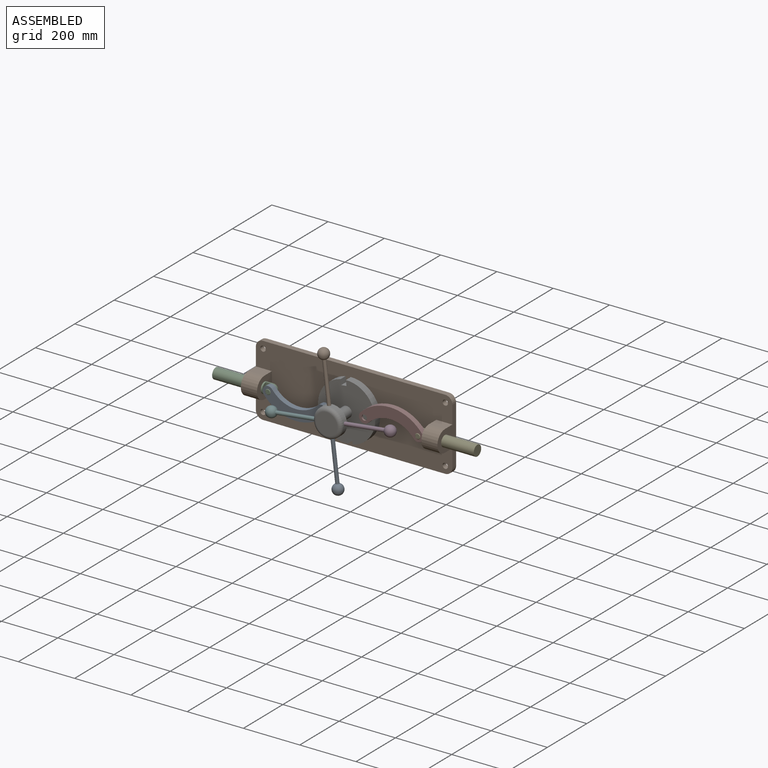
[diagram: assembled view]
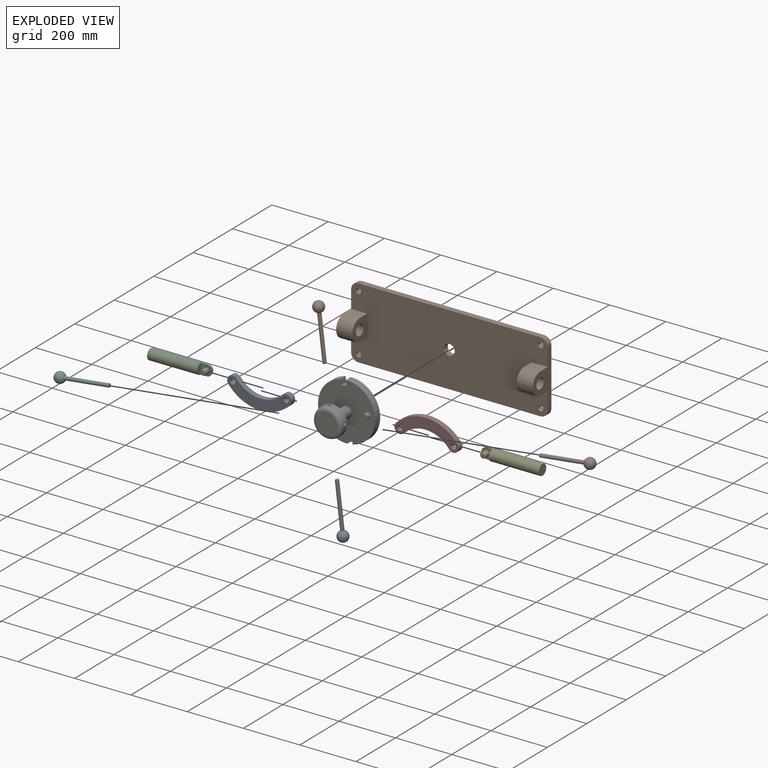
[diagram: exploded view]
GUIDED TOUR — MATED ASSEMBLY (Onshape document 58ec219f7053360f6da403fd, AutoMate assembly 58ec219f7053360f6da403fd_90d30a68a05c3bae7138fc90_4ec4306eb10f4b63859c2d42_default)

This assembly has 10 components, labeled P0..P9 below (a component is one placed occurrence of a part; the same part can appear more than once), held together by 11 mates. A mate is a constraint between two components; its type names the relative motion it leaves free:
  CYLINDRICAL — leaves both rotation about and translation along the listed axis free,
  FASTENED — locks the two components together rigidly (no relative motion),
  REVOLUTE — leaves rotation about the listed axis free (a hinge).
Axis/direction vectors are unit vectors and 'through' points are millimeter coordinates, both in the assembly's world frame.

MATES
  1. FASTENED "Fastened 4": P3 <-> P6, direction (-0.993, 0.000, -0.120) through (312.46, 189.18, 164.73) mm
  2. FASTENED "Fastened 5": P1 <-> P6, direction (0.120, 0.000, -0.993) through (273.74, 189.18, 195.10) mm
  3. FASTENED "Fastened 1": P5 <-> P6, direction (0.993, 0.000, 0.120) through (243.37, 189.18, 156.38) mm
  4. REVOLUTE "Revolute 3": P6 <-> P9, axis (0.000, 1.000, 0.000) through (277.92, 339.04, 160.55) mm
  5. REVOLUTE "Revolute 4": P0 <-> P6, axis (0.000, 1.000, 0.000) through (202.27, 269.19, 151.41) mm
  6. FASTENED "Fastened 3": P8 <-> P6, direction (-0.120, 0.000, 0.993) through (282.09, 189.18, 126.01) mm
  7. CYLINDRICAL "Cylindrical 2": P9 <-> P2, axis (1.000, 0.000, 0.000) through (-71.33, 269.19, 160.55) mm
  8. REVOLUTE "Revolute 1": P7 <-> P4, axis (0.000, 1.000, 0.000) through (544.22, 269.19, 160.55) mm
  9. REVOLUTE "Revolute 2": P0 <-> P2, axis (0.000, 1.000, 0.000) through (11.99, 269.19, 160.55) mm
  10. REVOLUTE "Revolute 5": P7 <-> P6, axis (0.000, 1.000, 0.000) through (353.94, 269.19, 169.74) mm
  11. CYLINDRICAL "Cylindrical 1": P4 <-> P9, axis (1.000, 0.000, 0.000) through (742.85, 269.19, 160.55) mm

ASSEMBLY ORDER
  1. P6 — the base component [order verified]
  2. P0 [order verified]
  3. P7 [order verified]
  4. P9 [order verified]
  5. P2 [order verified]
  6. P4 [order verified]
  7. P3 [order verified]
  8. P5 [order verified]
  9. P1 [order verified]
  10. P8 [order verified]
(P0, P2, P4 verified with a relaxed clearance tolerance: the source model stores slight part interference there.)
Order-tag legend:
  [order verified] — this step's position reverses a verified removal order: the component was checked to insert without passing through the ones already placed.

Of the 10 components, 2 carry the full construction recipe — the FeatureScript program that regenerates the part's solid from scratch; the rest are supplied as boundary geometry only.
Each toured component is shown spotlighted twice — in the assembled view, then in the exploded view, where a leader line traces a displaced component back to its assembled socket (saturated green if recipe-attached, orange if geometry-only; every other component desaturated gray) — followed by its recipe or geometry summary and the mates that hold it.
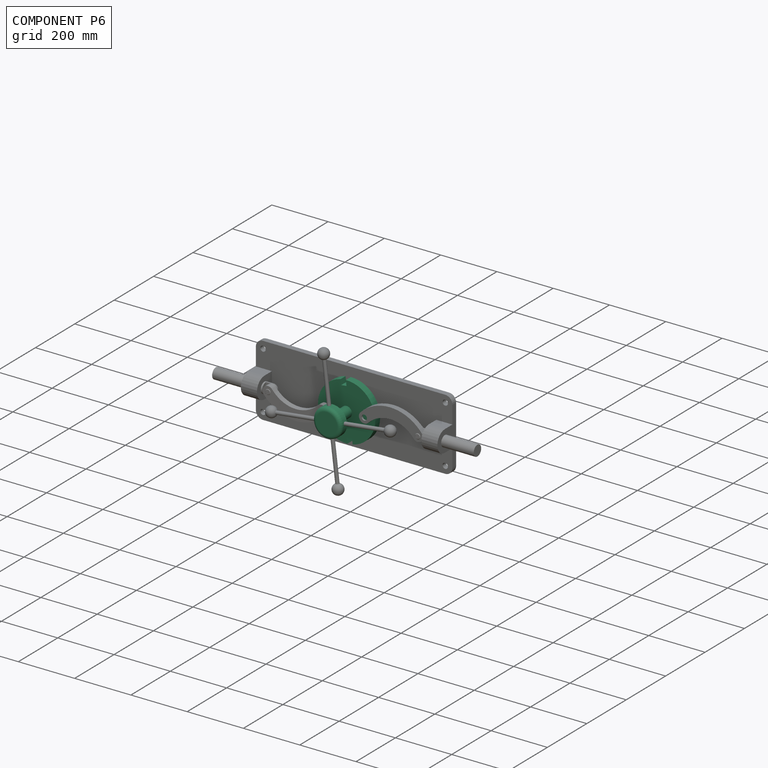
[diagram: component P6 — assembled]
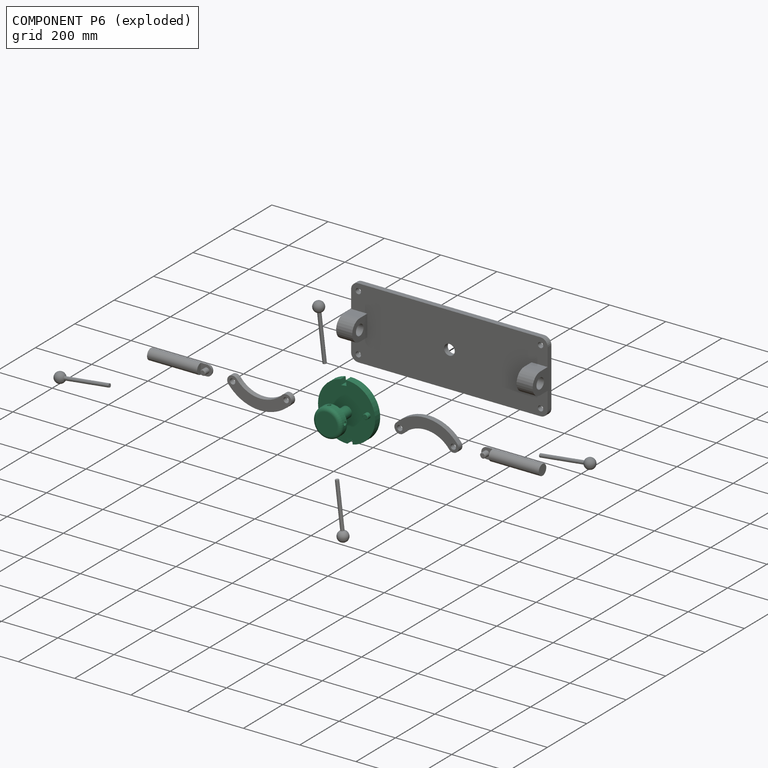
[diagram: component P6 — exploded]
COMPONENT P6 — recipe-attached (CADFS 00471395, mesh-verified: the recipe's output STEP matches this component's geometry to below the mesh-comparison resolution (tessellation chordal tolerance ~0.501 mm)).
Held by: FASTENED mate "Fastened 4" to P3; FASTENED mate "Fastened 5" to P1; FASTENED mate "Fastened 1" to P5; REVOLUTE mate "Revolute 3" to P9; REVOLUTE mate "Revolute 4" to P0; FASTENED mate "Fastened 3" to P8; REVOLUTE mate "Revolute 5" to P7.
Construction recipe (FeatureScript — the CAD program that rebuilds this solid; sketch coordinates are in the units given by the * unit suffixes, e.g. mm):

FeatureScript 2345;
import(path : "onshape/std/geometry.fs", version : "2345.0");
import(path : "onshape/std/common.fs", version : "2345.0");
const mm = millimeter;
const VERTEX = EntityType.VERTEX;
const EDGE = EntityType.EDGE;
const FACE = EntityType.FACE;
const BODY = EntityType.BODY;
function v(x, y){return vector(x, y);}
function OD(order){return orderDisambiguation(order);}
function OSD(set){return originalSetDisambiguation(set);}
function TD(topology){return topologyDisambiguation(topology);}
function TDD(query){return trueDependencyDisambiguation(query);}
function sQuery(a, b, c) {return sketchEntityQuery(a, b, c);}

annotation { "Feature Type Name" : "Feature", "Feature Type Description" : "" }
export const myFeature = defineFeature(function(context is Context, id is Id, definition is map)
    precondition{}
    {
        {
            var Q0;
            Q0=qCreatedBy(makeId("Front.planeOp"),FACE);
            var sketch = newSketch(context, id + "F0", { "sketchPlane" : qUnion([Q0])});
            skCircle(sketch, "E0", {"center": v(0, 0) * mm, "radius": 101.6 * mm});
            skSolve(sketch);
        }
        {
            var Q0;
            Q0 = qSketchRegion(id + "F0", true);
            extrude(context, id + "F1", {"entities" : qUnion([Q0]), "depth" : 19.05 * mm});
        }
        {
            var Q0;
            Q0=makeQuery(id+"F1.opExtrude","CAP_FACE",FACE,{"disambiguationData":[OSD([sQuery(id+"F0.wireOp",EDGE,"E0")])],"isStart":false});
            var sketch = newSketch(context, id + "F2", { "sketchPlane" : qUnion([Q0])});
            skCircle(sketch, "E1", {"center": v(0, 0) * mm, "radius": 19.05 * mm});
            skSolve(sketch);
        }
        {
            var Q0;
            Q0 = qSketchRegion(id + "F2", true);
            var Q1;
            Q1=makeQuery(id+"F2.imprint","IMPRINT",FACE,{"disambiguationData":[TD([[makeQuery(id+"F2.imprint","IMPRINT",EDGE,{"derivedFrom":sQuery(id+"F2.wireOp",EDGE,"E1")}),1.0]])]});
            extrude(context, id + "F3", {"entities" : qUnion([Q0, Q1]), "operationType" : NewBodyOperationType.ADD, "depth" : 76.2 * mm});
        }
        {
            var Q0;
            Q0=makeQuery(id+"F3.opExtrude","CAP_FACE",FACE,{"disambiguationData":[OSD([sQuery(id+"F2.wireOp",EDGE,"E1")])],"isStart":false});
            var sketch = newSketch(context, id + "F4", { "sketchPlane" : qUnion([Q0])});
            skCircle(sketch, "E2", {"center": v(0, 0) * mm, "radius": 50.8 * mm});
            skSolve(sketch);
        }
        {
            var Q0;
            Q0=makeQuery(id+"F4.imprint","IMPRINT",FACE,{"disambiguationData":[TD([[makeQuery(id+"F4.imprint","IMPRINT",EDGE,{"derivedFrom":sQuery(id+"F4.wireOp",EDGE,"E2")}),1.0]])]});
            var Q1;
            Q1=makeQuery(id+"F4.imprint","IMPRINT",FACE,{"disambiguationData":[TD([[makeQuery(id+"F4.imprint","IMPRINT",EDGE,{"derivedFrom":makeQuery(id+"F3.opExtrude","CAP_EDGE",EDGE,{"disambiguationData":[OSD([sQuery(id+"F2.wireOp",EDGE,"E1")])],"isStart":false})}),1.0]])]});
            extrude(context, id + "F5", {"entities" : qUnion([Q0, Q1]), "operationType" : NewBodyOperationType.ADD, "depth" : 31.75 * mm});
        }
        {
            var Q0;
            Q0=makeQuery(id+"F1.opExtrude","CAP_FACE",FACE,{"disambiguationData":[OSD([sQuery(id+"F0.wireOp",EDGE,"E0")])],"isStart":false});
            var sketch = newSketch(context, id + "F6", { "sketchPlane" : qUnion([Q0])});
            skCircle(sketch, "E3", {"center": v(0, 76.2) * mm, "radius": 9.53 * mm});
            skCircle(sketch, "E4", {"center": v(0, -76.58) * mm, "radius": 9.52 * mm});
            skSolve(sketch);
        }
        {
            var Q0;
            Q0 = qSketchRegion(id + "F6", true);
            extrude(context, id + "F7", {"entities" : qUnion([Q0]), "operationType" : NewBodyOperationType.ADD, "depth" : 20.83 * mm});
        }
        {
            var Q0;
            Q0=makeQuery(id+"F5.opExtrude","CAP_EDGE",EDGE,{"disambiguationData":[OSD([sQuery(id+"F4.wireOp",EDGE,"E2")])],"isStart":false});
            fillet(context, id + "F8", {"entities" : qUnion([Q0]), "radius" : 12.7 * mm, "tangentPropagation" : true, "allowEdgeOverflow" : false});
        }
        {
            var Q0;
            Q0=makeQuery(id+"F1.opExtrude","CAP_FACE",FACE,{"disambiguationData":[OSD([sQuery(id+"F0.wireOp",EDGE,"E0")])],"isStart":true});
            var sketch = newSketch(context, id + "F9", { "sketchPlane" : qUnion([Q0])});
            skCircle(sketch, "E5", {"center": v(0, 0) * mm, "radius": 25.4 * mm});
            skSolve(sketch);
        }
        {
            var Q0;
            Q0 = qSketchRegion(id + "F9", true);
            extrude(context, id + "F10", {"entities" : qUnion([Q0]), "operationType" : NewBodyOperationType.ADD, "depth" : 19.05 * mm});
        }
        {
            var Q0;
            Q0=makeQuery(id+"F10.opExtrude","CAP_FACE",FACE,{"disambiguationData":[OSD([sQuery(id+"F9.wireOp",EDGE,"E5")])],"isStart":false});
            var sketch = newSketch(context, id + "F11", { "sketchPlane" : qUnion([Q0])});
            skCircle(sketch, "E6", {"center": v(0, 0) * mm, "radius": 19.05 * mm});
            skSolve(sketch);
        }
        {
            var Q0;
            Q0=makeQuery(id+"F11.imprint","IMPRINT",FACE,{"disambiguationData":[TD([[makeQuery(id+"F11.imprint","IMPRINT",EDGE,{"derivedFrom":sQuery(id+"F11.wireOp",EDGE,"E6")}),1.0]])]});
            extrude(context, id + "F12", {"entities" : qUnion([Q0]), "operationType" : NewBodyOperationType.ADD, "depth" : 25.4 * mm});
        }
        {
            var Q0;
            Q0 = qSketchRegion(id + "F0", true);
            extrude(context, id + "F13", {"entities" : qUnion([Q0]), "operationType" : NewBodyOperationType.ADD, "depth" : 25.4 * mm});
        }
        {
            var Q0;
            Q0=makeQuery(id+"F13.opExtrude","CAP_FACE",FACE,{"disambiguationData":[OSD([sQuery(id+"F0.wireOp",EDGE,"E0")])],"isStart":false});
            var sketch = newSketch(context, id + "F14", { "sketchPlane" : qUnion([Q0])});
            skLineSegment(sketch, "E7", {"start": v(0, 0) * mm, "end": v(82.55, 0) * mm});
            skLineSegment(sketch, "E8", {"start": v(82.55, 0) * mm, "end": v(82.55, 9.53) * mm});
            skLineSegment(sketch, "E9", {"start": v(82.55, 0) * mm, "end": v(82.55, -9.53) * mm});
            skLineSegment(sketch, "E10", {"start": v(82.55, -9.53) * mm, "end": v(120.55, -9.53) * mm});
            skLineSegment(sketch, "E11", {"start": v(120.55, -9.53) * mm, "end": v(120.55, 9.53) * mm});
            skLineSegment(sketch, "E12", {"start": v(120.55, 9.53) * mm, "end": v(82.55, 9.53) * mm});
            skSolve(sketch);
        }
        {
            var Q0;
            {var subQ0=sQuery(id+"F14.wireOp",EDGE,"E11");Q0=makeQuery(id+"F14.imprint","IMPRINT",FACE,{"disambiguationData":[TD([[makeQuery(id+"F14.imprint","IMPRINT",EDGE,{"derivedFrom":subQ0}),1.0]])]});}
            var Q1;
            {var subQ5=sQuery(id+"F14.wireOp",EDGE,"E8");Q1=makeQuery(id+"F14.imprint","IMPRINT",FACE,{"disambiguationData":[TD([[makeQuery(id+"F14.imprint","IMPRINT",EDGE,{"derivedFrom":subQ5}),-1.0]])]});}
            var Q2;
            Q2=sQuery(id+"F14.wireOp",EDGE,"E10");
            var Q3;
            Q3=sQuery(id+"F14.wireOp",EDGE,"E12");
            var Q4;
            Q4=sQuery(id+"F14.wireOp",EDGE,"E9");
            var Q5;
            Q5=sQuery(id+"F14.wireOp",EDGE,"E11");
            var Q6;
            Q6=sQuery(id+"F14.wireOp",EDGE,"E8");
            extrude(context, id + "F15", {"entities" : qUnion([Q0, Q1]), "operationType" : NewBodyOperationType.REMOVE, "surfaceEntities" : qUnion([Q2, Q3, Q4, Q5, Q6]), "oppositeDirection" : true, "depth" : 27.94 * mm});
        }
        {
            var Q0;
            Q0=makeQuery(id+"F13.opExtrude","CAP_FACE",FACE,{"disambiguationData":[OSD([sQuery(id+"F0.wireOp",EDGE,"E0")])],"isStart":false});
            var sketch = newSketch(context, id + "F16", { "sketchPlane" : qUnion([Q0])});
            skLineSegment(sketch, "E13", {"start": v(0, 0) * mm, "end": v(-82.55, 0) * mm});
            skLineSegment(sketch, "E14", {"start": v(-82.55, 0) * mm, "end": v(-82.55, 9.52) * mm});
            skLineSegment(sketch, "E15", {"start": v(-82.55, 0) * mm, "end": v(-82.55, -9.53) * mm});
            skLineSegment(sketch, "E16", {"start": v(-82.55, -9.53) * mm, "end": v(-117.5, -9.53) * mm});
            skLineSegment(sketch, "E17", {"start": v(-117.5, -9.53) * mm, "end": v(-117.5, 9.52) * mm});
            skLineSegment(sketch, "E18", {"start": v(-117.5, 9.52) * mm, "end": v(-82.55, 9.52) * mm});
            skSolve(sketch);
        }
        {
            var Q0;
            {var subQ0=sQuery(id+"F16.wireOp",EDGE,"E17");Q0=makeQuery(id+"F16.imprint","IMPRINT",FACE,{"disambiguationData":[TD([[makeQuery(id+"F16.imprint","IMPRINT",EDGE,{"derivedFrom":subQ0}),-1.0]])]});}
            var Q1;
            {var subQ5=sQuery(id+"F16.wireOp",EDGE,"E14");Q1=makeQuery(id+"F16.imprint","IMPRINT",FACE,{"disambiguationData":[TD([[makeQuery(id+"F16.imprint","IMPRINT",EDGE,{"derivedFrom":subQ5}),1.0]])]});}
            extrude(context, id + "F17", {"entities" : qUnion([Q0, Q1]), "operationType" : NewBodyOperationType.REMOVE, "oppositeDirection" : true, "depth" : 25.4 * mm});
        }
        {
            var Q0;
            Q0=makeQuery(id+"F7.opExtrude","CAP_EDGE",EDGE,{"disambiguationData":[OSD([sQuery(id+"F6.wireOp",EDGE,"E3")])],"isStart":false});
            var Q1;
            Q1=makeQuery(id+"F7.opExtrude","CAP_EDGE",EDGE,{"disambiguationData":[OSD([sQuery(id+"F6.wireOp",EDGE,"E4")])],"isStart":false});
            chamfer(context, id + "F18", {"entities" : qUnion([Q0, Q1]), "chamferType" : ChamferType.OFFSET_ANGLE, "width" : 1.52 * mm, "oppositeDirection" : false, "angle" : 45 * degree, "tangentPropagation" : true});
        }
        {
            var Q0;
            Q0=qCreatedBy(makeId("Top.planeOp"),FACE);
            cPlane(context, id + "F19", {"entities" : qUnion([Q0]), "cplaneType" : CPlaneType.OFFSET, "offset" : 50.8 * mm, "width" : 152.4 * mm, "height" : 152.4 * mm});
        }
        {
            var Q0;
            Q0=qCreatedBy(id+"F19.planeOp",FACE);
            var sketch = newSketch(context, id + "F20", { "sketchPlane" : qUnion([Q0])});
            skCircle(sketch, "E19", {"center": v(0, -105.4) * mm, "radius": 6.35 * mm});
            skSolve(sketch);
        }
        {
            var Q0;
            Q0 = qSketchRegion(id + "F20", true);
            extrude(context, id + "F21", {"entities" : qUnion([Q0]), "operationType" : NewBodyOperationType.REMOVE, "oppositeDirection" : true, "depth" : 16 * mm});
        }
        {
            var Q0;
            Q0=qCreatedBy(id+"F19.planeOp",FACE);
            cPlane(context, id + "F22", {"entities" : qUnion([Q0]), "cplaneType" : CPlaneType.OFFSET, "offset" : 101.6 * mm, "oppositeDirection" : true, "width" : 152.4 * mm, "height" : 152.4 * mm});
        }
        {
            var Q0;
            Q0=qCreatedBy(id+"F22.planeOp",FACE);
            var sketch = newSketch(context, id + "F23", { "sketchPlane" : qUnion([Q0])});
            skLineSegment(sketch, "E20", {"start": v(0, 0) * mm, "end": v(0, -105.4) * mm});
            skCircle(sketch, "E21", {"center": v(0, -105.4) * mm, "radius": 6.35 * mm});
            skSolve(sketch);
        }
        {
            var Q0;
            Q0 = qSketchRegion(id + "F23", true);
            extrude(context, id + "F24", {"entities" : qUnion([Q0]), "operationType" : NewBodyOperationType.REMOVE, "depth" : 16 * mm});
        }
        {
            var Q0;
            Q0=qCreatedBy(makeId("Right.planeOp"),FACE);
            cPlane(context, id + "F25", {"entities" : qUnion([Q0]), "cplaneType" : CPlaneType.OFFSET, "offset" : 50.8 * mm, "width" : 152.4 * mm, "height" : 152.4 * mm});
        }
        {
            var Q0;
            Q0=qCreatedBy(id+"F25.planeOp",FACE);
            var sketch = newSketch(context, id + "F26", { "sketchPlane" : qUnion([Q0])});
            skLineSegment(sketch, "E22", {"start": v(0, 0) * mm, "end": v(-105.41, 0) * mm});
            skCircle(sketch, "E23", {"center": v(-105.41, 0) * mm, "radius": 6.35 * mm});
            skSolve(sketch);
        }
        {
            var Q0;
            Q0 = qSketchRegion(id + "F26", true);
            extrude(context, id + "F27", {"entities" : qUnion([Q0]), "operationType" : NewBodyOperationType.REMOVE, "oppositeDirection" : true, "depth" : 16 * mm});
        }
        {
            var Q0;
            Q0=qCreatedBy(makeId("Right.planeOp"),FACE);
            cPlane(context, id + "F28", {"entities" : qUnion([Q0]), "cplaneType" : CPlaneType.OFFSET, "offset" : 50.8 * mm, "oppositeDirection" : true, "width" : 152.4 * mm, "height" : 152.4 * mm});
        }
        {
            var Q0;
            Q0=qCreatedBy(id+"F28.planeOp",FACE);
            var sketch = newSketch(context, id + "F29", { "sketchPlane" : qUnion([Q0])});
            skLineSegment(sketch, "E24", {"start": v(0, 0) * mm, "end": v(-105.41, 0) * mm});
            skCircle(sketch, "E25", {"center": v(-105.41, 0) * mm, "radius": 6.35 * mm});
            skSolve(sketch);
        }
        {
            var Q0;
            Q0 = qSketchRegion(id + "F29", true);
            extrude(context, id + "F30", {"entities" : qUnion([Q0]), "operationType" : NewBodyOperationType.REMOVE, "depth" : 16 * mm});
        }
    });
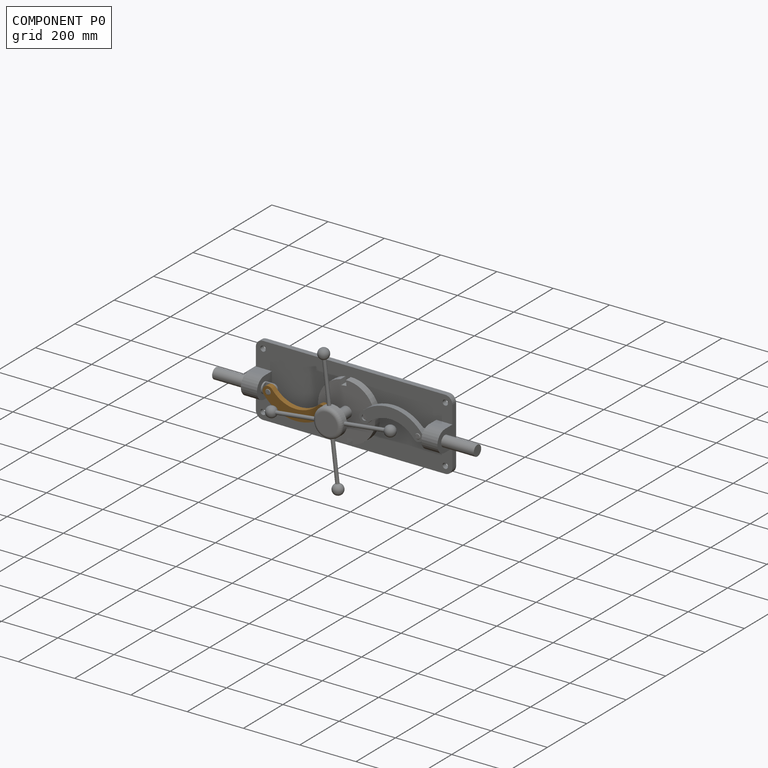
[diagram: component P0 — assembled]
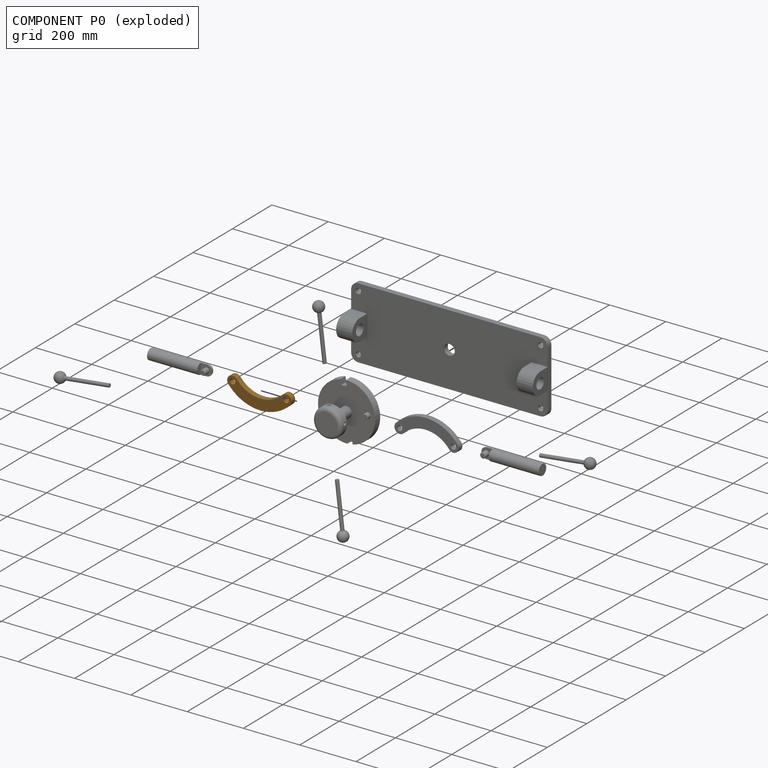
[diagram: component P0 — exploded]
COMPONENT P0 — geometry summary (no construction recipe available for this part):
  bounding box: 228.6 x 81.1 x 19.1 mm
  B-rep topology: 1 solid, 8 faces, 36 edges
  volume: 167203 mm^3 (47% of its bounding box)
  symmetry: 2-fold rotationally symmetric about the z axis; mirror-symmetric across its x mid-plane, y mid-plane
Held by: REVOLUTE mate "Revolute 4" to P6; REVOLUTE mate "Revolute 2" to P2.
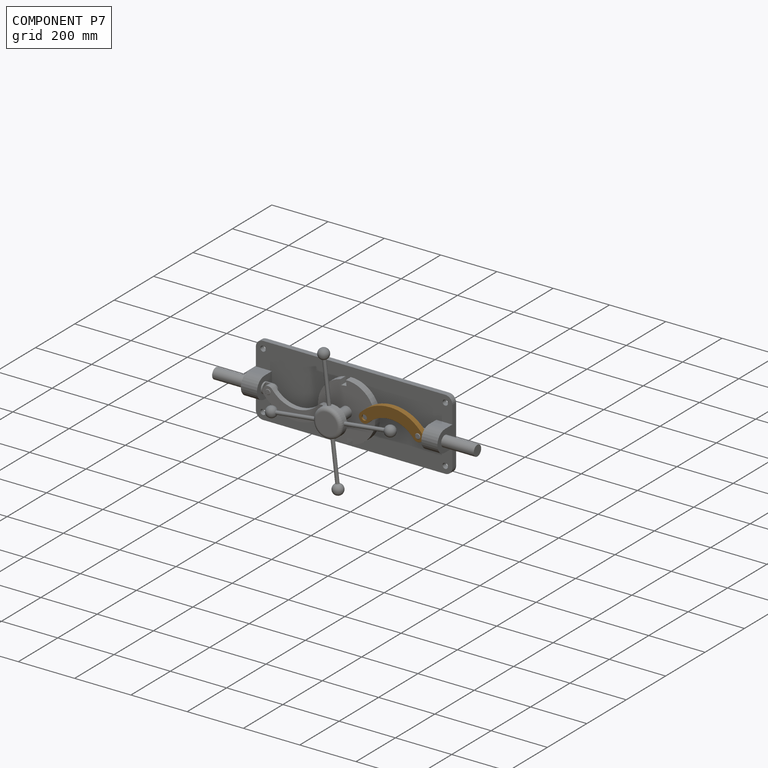
[diagram: component P7 — assembled]
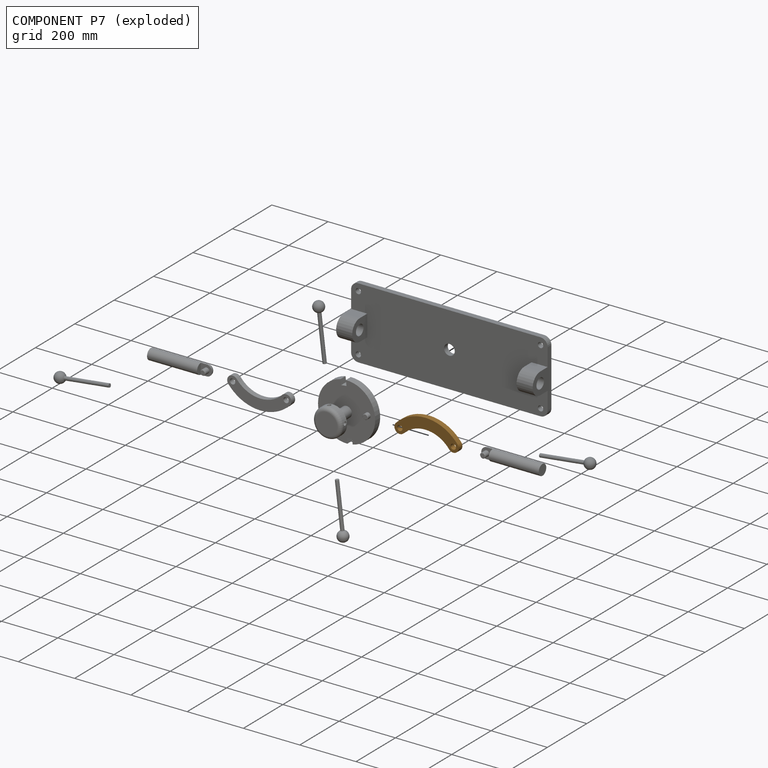
[diagram: component P7 — exploded]
COMPONENT P7 — geometry summary (no construction recipe available for this part):
  bounding box: 228.6 x 81.1 x 19.1 mm
  B-rep topology: 1 solid, 8 faces, 36 edges
  volume: 167203 mm^3 (47% of its bounding box)
  symmetry: 2-fold rotationally symmetric about the z axis; mirror-symmetric across its x mid-plane, y mid-plane
Held by: REVOLUTE mate "Revolute 1" to P4; REVOLUTE mate "Revolute 5" to P6.
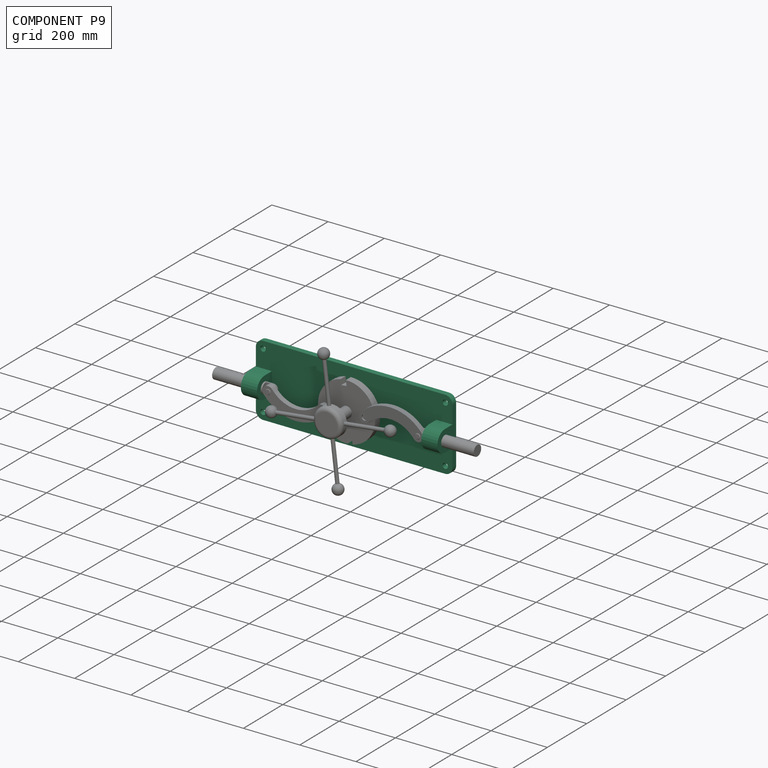
[diagram: component P9 — assembled]
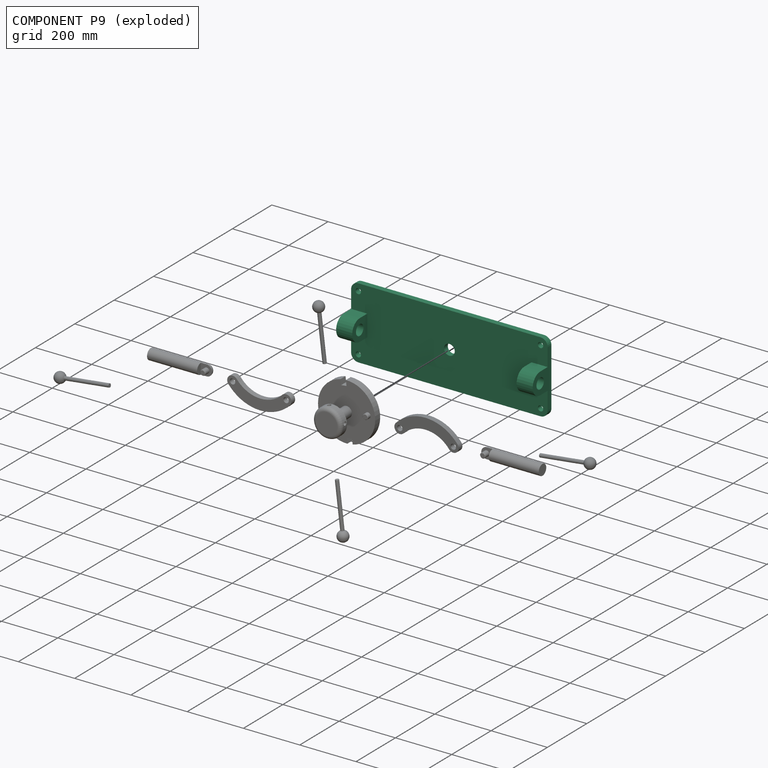
[diagram: component P9 — exploded]
COMPONENT P9 — recipe-attached (CADFS 00471392, mesh-verified: the recipe's output STEP matches this component's geometry to below the mesh-comparison resolution (tessellation chordal tolerance ~1.12 mm)).
Held by: REVOLUTE mate "Revolute 3" to P6; CYLINDRICAL mate "Cylindrical 2" to P2; CYLINDRICAL mate "Cylindrical 1" to P4.
Construction recipe (FeatureScript — the CAD program that rebuilds this solid; sketch coordinates are in the units given by the * unit suffixes, e.g. mm):

FeatureScript 2345;
import(path : "onshape/std/geometry.fs", version : "2345.0");
import(path : "onshape/std/common.fs", version : "2345.0");
const mm = millimeter;
const VERTEX = EntityType.VERTEX;
const EDGE = EntityType.EDGE;
const FACE = EntityType.FACE;
const BODY = EntityType.BODY;
function v(x, y){return vector(x, y);}
function OD(order){return orderDisambiguation(order);}
function OSD(set){return originalSetDisambiguation(set);}
function TD(topology){return topologyDisambiguation(topology);}
function TDD(query){return trueDependencyDisambiguation(query);}
function sQuery(a, b, c) {return sketchEntityQuery(a, b, c);}

annotation { "Feature Type Name" : "Feature", "Feature Type Description" : "" }
export const myFeature = defineFeature(function(context is Context, id is Id, definition is map)
    precondition{}
    {
        {
            var Q0;
            Q0=qCreatedBy(makeId("Front.planeOp"),FACE);
            var sketch = newSketch(context, id + "F0", { "sketchPlane" : qUnion([Q0])});
            skLineSegment(sketch, "E0", {"start": v(-304.5, 0) * mm, "end": v(394, 0) * mm});
            skLineSegment(sketch, "E1", {"start": v(-304.5, 0) * mm, "end": v(-304.5, 254) * mm});
            skLineSegment(sketch, "E2", {"start": v(-304.5, 254) * mm, "end": v(394, 254) * mm});
            skLineSegment(sketch, "E3", {"start": v(394, 254) * mm, "end": v(394, 0) * mm});
            skLineSegment(sketch, "E4", {"start": v(44.75, 0) * mm, "end": v(44.75, 127) * mm});
            skCircle(sketch, "E5", {"center": v(44.75, 127) * mm, "radius": 19.05 * mm});
            skSolve(sketch);
        }
        {
            var Q0;
            {var subQ0=sQuery(id+"F0.wireOp",EDGE,"E1");Q0=makeQuery(id+"F0.imprint","IMPRINT",FACE,{"disambiguationData":[TD([[makeQuery(id+"F0.imprint","IMPRINT",EDGE,{"derivedFrom":subQ0}),-1.0]])]});}
            extrude(context, id + "F1", {"entities" : qUnion([Q0]), "depth" : 19.05 * mm});
        }
        {
            var Q0;
            Q0=makeQuery(id+"F1.opExtrude","SWEPT_EDGE",EDGE,{"disambiguationData":[OSD([sQuery(id+"F0.wireOp",EDGE,"E1"),sQuery(id+"F0.wireOp",EDGE,"E2")])]});
            var Q1;
            Q1=makeQuery(id+"F1.opExtrude","SWEPT_EDGE",EDGE,{"disambiguationData":[OSD([sQuery(id+"F0.wireOp",EDGE,"E2"),sQuery(id+"F0.wireOp",EDGE,"E3")])]});
            var Q2;
            Q2=makeQuery(id+"F1.opExtrude","SWEPT_EDGE",EDGE,{"disambiguationData":[OSD([sQuery(id+"F0.wireOp",EDGE,"E0"),sQuery(id+"F0.wireOp",EDGE,"E3")])]});
            var Q3;
            Q3=makeQuery(id+"F1.opExtrude","SWEPT_EDGE",EDGE,{"disambiguationData":[OSD([sQuery(id+"F0.wireOp",EDGE,"E0"),sQuery(id+"F0.wireOp",EDGE,"E1")])]});
            fillet(context, id + "F2", {"entities" : qUnion([Q0, Q1, Q2, Q3]), "radius" : 25.4 * mm, "tangentPropagation" : true, "allowEdgeOverflow" : false});
        }
        {
            var Q0;
            Q0=makeQuery(id+"F1.opExtrude","CAP_FACE",FACE,{"disambiguationData":[OSD([sQuery(id+"F0.wireOp",EDGE,"E0"),sQuery(id+"F0.wireOp",EDGE,"E1"),sQuery(id+"F0.wireOp",EDGE,"E2"),sQuery(id+"F0.wireOp",EDGE,"E3"),sQuery(id+"F0.wireOp",EDGE,"E5")])],"isStart":false});
            var sketch = newSketch(context, id + "F3", { "sketchPlane" : qUnion([Q0])});
            skCircle(sketch, "E6", {"center": v(-279.1, 228.6) * mm, "radius": 9.53 * mm});
            skCircle(sketch, "E7", {"center": v(-279.1, 25.4) * mm, "radius": 9.53 * mm});
            skCircle(sketch, "E8", {"center": v(368.6, 228.6) * mm, "radius": 9.53 * mm});
            skCircle(sketch, "E9", {"center": v(368.6, 25.4) * mm, "radius": 9.53 * mm});
            skSolve(sketch);
        }
        {
            var Q0;
            Q0=makeQuery(id+"F1.opExtrude","CAP_FACE",FACE,{"disambiguationData":[OSD([sQuery(id+"F0.wireOp",EDGE,"E0"),sQuery(id+"F0.wireOp",EDGE,"E1"),sQuery(id+"F0.wireOp",EDGE,"E2"),sQuery(id+"F0.wireOp",EDGE,"E3"),sQuery(id+"F0.wireOp",EDGE,"E5")])],"isStart":false});
            var sketch = newSketch(context, id + "F4", { "sketchPlane" : qUnion([Q0])});
            skLineSegment(sketch, "E10.bottom", {"start": v(-304.5, 127) * mm, "end": v(-247.35, 127) * mm});
            skLineSegment(sketch, "E10.top", {"start": v(-304.5, 88.9) * mm, "end": v(-247.35, 88.9) * mm});
            skLineSegment(sketch, "E10.left", {"start": v(-304.5, 127) * mm, "end": v(-304.5, 88.9) * mm});
            skLineSegment(sketch, "E10.right", {"start": v(-247.35, 127) * mm, "end": v(-247.35, 88.9) * mm});
            skLineSegment(sketch, "E11.top", {"start": v(-304.5, 165.1) * mm, "end": v(-247.35, 165.1) * mm});
            skLineSegment(sketch, "E11.left", {"start": v(-304.5, 127) * mm, "end": v(-304.5, 165.1) * mm});
            skLineSegment(sketch, "E11.right", {"start": v(-247.35, 127) * mm, "end": v(-247.35, 165.1) * mm});
            skLineSegment(sketch, "E12", {"start": v(394, 88.9) * mm, "end": v(394, 165.1) * mm});
            skLineSegment(sketch, "E13", {"start": v(394, 165.1) * mm, "end": v(336.85, 165.1) * mm});
            skLineSegment(sketch, "E14", {"start": v(336.85, 88.9) * mm, "end": v(394, 88.9) * mm});
            skLineSegment(sketch, "E15", {"start": v(336.85, 165.1) * mm, "end": v(336.85, 88.9) * mm});
            skLineSegment(sketch, "E16", {"start": v(336.85, 127) * mm, "end": v(394, 127) * mm});
            skSolve(sketch);
        }
        {
            var Q0;
            Q0=makeQuery(id+"F4.imprint","IMPRINT",FACE,{"disambiguationData":[TD([[makeQuery(id+"F4.imprint","IMPRINT",EDGE,{"derivedFrom":sQuery(id+"F4.wireOp",EDGE,"E10.bottom")}),1.0]])]});
            var Q1;
            Q1=makeQuery(id+"F4.imprint","IMPRINT",FACE,{"disambiguationData":[TD([[makeQuery(id+"F4.imprint","IMPRINT",EDGE,{"derivedFrom":sQuery(id+"F4.wireOp",EDGE,"E10.top")}),1.0]])]});
            extrude(context, id + "F5", {"entities" : qUnion([Q0, Q1]), "operationType" : NewBodyOperationType.ADD, "depth" : 38.1 * mm});
        }
        {
            var Q0;
            Q0=makeQuery(id+"F5.boolean.opBoolean","MERGE",FACE,{"derivedFrom":[makeQuery(id+"F1.opExtrude","SWEPT_FACE",FACE,{"disambiguationData":[OSD([sQuery(id+"F0.wireOp",EDGE,"E1")])]}),makeQuery(id+"F5.opExtrude","SWEPT_FACE",FACE,{"disambiguationData":[OSD([sQuery(id+"F4.wireOp",EDGE,"E10.left"),sQuery(id+"F4.wireOp",EDGE,"E11.left")])]})]});
            var sketch = newSketch(context, id + "F6", { "sketchPlane" : qUnion([Q0])});
            skCircle(sketch, "E17", {"center": v(57.15, 127) * mm, "radius": 38.1 * mm});
            skSolve(sketch);
        }
        {
            var Q0;
            {var subQ1=sQuery(id+"F4.wireOp",EDGE,"E11.left");var subQ2=sQuery(id+"F4.wireOp",EDGE,"E10.left");var subQ3=makeQuery(id+"F5.opExtrude","CAP_EDGE",EDGE,{"disambiguationData":[OSD([subQ2,subQ1])],"isStart":false});Q0=makeQuery(id+"F6.imprint","IMPRINT",FACE,{"disambiguationData":[TD([[makeQuery(id+"F6.imprint","IMPRINT",EDGE,{"derivedFrom":subQ3}),-1.0]])]});}
            extrude(context, id + "F7", {"entities" : qUnion([Q0]), "operationType" : NewBodyOperationType.ADD, "oppositeDirection" : true, "depth" : 57.15 * mm});
        }
        {
            var Q0;
            Q0=makeQuery(id+"F7.boolean.opBoolean","MERGE",FACE,{"derivedFrom":[makeQuery(id+"F5.opExtrude","SWEPT_FACE",FACE,{"disambiguationData":[OSD([sQuery(id+"F4.wireOp",EDGE,"E10.right"),sQuery(id+"F4.wireOp",EDGE,"E11.right")])]}),makeQuery(id+"F7.opExtrude","CAP_FACE",FACE,{"disambiguationData":[OSD([sQuery(id+"F4.wireOp",EDGE,"E10.left"),sQuery(id+"F4.wireOp",EDGE,"E11.left"),sQuery(id+"F6.wireOp",EDGE,"E17")])],"isStart":false})]});
            var sketch = newSketch(context, id + "F8", { "sketchPlane" : qUnion([Q0])});
            skCircle(sketch, "E18", {"center": v(-57.15, 127) * mm, "radius": 19.05 * mm});
            skSolve(sketch);
        }
        {
            var Q0;
            Q0=makeQuery(id+"F1.opExtrude","CAP_FACE",FACE,{"disambiguationData":[OSD([sQuery(id+"F0.wireOp",EDGE,"E0"),sQuery(id+"F0.wireOp",EDGE,"E1"),sQuery(id+"F0.wireOp",EDGE,"E2"),sQuery(id+"F0.wireOp",EDGE,"E3"),sQuery(id+"F0.wireOp",EDGE,"E5")])],"isStart":false});
            var sketch = newSketch(context, id + "F9", { "sketchPlane" : qUnion([Q0])});
            skSolve(sketch);
        }
        {
            var Q0;
            Q0=makeQuery(id+"F8.imprint","IMPRINT",FACE,{"disambiguationData":[TD([[makeQuery(id+"F8.imprint","IMPRINT",EDGE,{"derivedFrom":sQuery(id+"F8.wireOp",EDGE,"E18")}),1.0]])]});
            extrude(context, id + "F10", {"entities" : qUnion([Q0]), "operationType" : NewBodyOperationType.REMOVE, "oppositeDirection" : true, "depth" : 76.2 * mm});
        }
        {
            var Q0;
            Q0=makeQuery(id+"F3.imprint","IMPRINT",FACE,{"disambiguationData":[TD([[makeQuery(id+"F3.imprint","IMPRINT",EDGE,{"derivedFrom":sQuery(id+"F3.wireOp",EDGE,"E6")}),-1.0]])]});
            var sketch = newSketch(context, id + "F11", { "sketchPlane" : qUnion([Q0])});
            skSolve(sketch);
        }
        {
            var Q0;
            Q0 = qSketchRegion(id + "F4", true);
            extrude(context, id + "F12", {"entities" : qUnion([Q0]), "operationType" : NewBodyOperationType.ADD, "depth" : 38.1 * mm});
        }
        {
            var Q0;
            Q0=makeQuery(id+"F12.boolean.opBoolean","MERGE",FACE,{"derivedFrom":[makeQuery(id+"F1.opExtrude","SWEPT_FACE",FACE,{"disambiguationData":[OSD([sQuery(id+"F0.wireOp",EDGE,"E3")])]}),makeQuery(id+"F12.opExtrude","SWEPT_FACE",FACE,{"disambiguationData":[OSD([sQuery(id+"F4.wireOp",EDGE,"E12")])]})]});
            var sketch = newSketch(context, id + "F13", { "sketchPlane" : qUnion([Q0])});
            skCircle(sketch, "E19", {"center": v(-57.15, 127) * mm, "radius": 38.1 * mm});
            skSolve(sketch);
        }
        {
            var Q0;
            {var subQ1=sQuery(id+"F4.wireOp",EDGE,"E12");var subQ2=makeQuery(id+"F12.opExtrude","CAP_EDGE",EDGE,{"disambiguationData":[OSD([subQ1])],"isStart":false});Q0=makeQuery(id+"F13.imprint","IMPRINT",FACE,{"disambiguationData":[TD([[makeQuery(id+"F13.imprint","IMPRINT",EDGE,{"derivedFrom":subQ2}),-1.0]])]});}
            extrude(context, id + "F14", {"entities" : qUnion([Q0]), "operationType" : NewBodyOperationType.ADD, "oppositeDirection" : true, "depth" : 57.15 * mm});
        }
        {
            var Q0;
            {var subQ0=sQuery(id+"F4.wireOp",EDGE,"E12");Q0=makeQuery(id+"F14.boolean.opBoolean","MERGE",FACE,{"derivedFrom":[makeQuery(id+"F12.boolean.opBoolean","MERGE",FACE,{"derivedFrom":[makeQuery(id+"F1.opExtrude","SWEPT_FACE",FACE,{"disambiguationData":[OSD([sQuery(id+"F0.wireOp",EDGE,"E3")])]}),makeQuery(id+"F12.opExtrude","SWEPT_FACE",FACE,{"disambiguationData":[OSD([subQ0])]})]}),makeQuery(id+"F14.opExtrude","CAP_FACE",FACE,{"disambiguationData":[OSD([subQ0,sQuery(id+"F13.wireOp",EDGE,"E19")])],"isStart":true})]});}
            var sketch = newSketch(context, id + "F15", { "sketchPlane" : qUnion([Q0])});
            skCircle(sketch, "E20", {"center": v(-57.15, 127) * mm, "radius": 19.05 * mm});
            skSolve(sketch);
        }
        {
            var Q0;
            Q0=makeQuery(id+"F8.imprint","IMPRINT",FACE,{"disambiguationData":[TD([[makeQuery(id+"F8.imprint","IMPRINT",EDGE,{"derivedFrom":sQuery(id+"F8.wireOp",EDGE,"E18")}),1.0]])]});
            extrude(context, id + "F16", {"entities" : qUnion([Q0]), "operationType" : NewBodyOperationType.REMOVE, "oppositeDirection" : true, "depth" : 76.2 * mm});
        }
        {
            var Q0;
            Q0=makeQuery(id+"F15.imprint","IMPRINT",FACE,{"disambiguationData":[TD([[makeQuery(id+"F15.imprint","IMPRINT",EDGE,{"derivedFrom":sQuery(id+"F15.wireOp",EDGE,"E20")}),1.0]])]});
            extrude(context, id + "F17", {"entities" : qUnion([Q0]), "operationType" : NewBodyOperationType.REMOVE, "oppositeDirection" : true, "depth" : 57.15 * mm});
        }
        {
            var Q0;
            Q0=makeQuery(id+"F11.imprint","IMPRINT",FACE,{"disambiguationData":[TD([[makeQuery(id+"F11.imprint","IMPRINT",EDGE,{"derivedFrom":makeQuery(id+"F3.imprint","IMPRINT",EDGE,{"derivedFrom":sQuery(id+"F3.wireOp",EDGE,"E6")})}),1.0]])]});
            var Q1;
            Q1=makeQuery(id+"F11.imprint","IMPRINT",FACE,{"disambiguationData":[TD([[makeQuery(id+"F11.imprint","IMPRINT",EDGE,{"derivedFrom":makeQuery(id+"F3.imprint","IMPRINT",EDGE,{"derivedFrom":sQuery(id+"F3.wireOp",EDGE,"E7")})}),1.0]])]});
            var Q2;
            Q2=makeQuery(id+"F11.imprint","IMPRINT",FACE,{"disambiguationData":[TD([[makeQuery(id+"F11.imprint","IMPRINT",EDGE,{"derivedFrom":makeQuery(id+"F3.imprint","IMPRINT",EDGE,{"derivedFrom":sQuery(id+"F3.wireOp",EDGE,"E8")})}),1.0]])]});
            var Q3;
            Q3=makeQuery(id+"F11.imprint","IMPRINT",FACE,{"disambiguationData":[TD([[makeQuery(id+"F11.imprint","IMPRINT",EDGE,{"derivedFrom":makeQuery(id+"F3.imprint","IMPRINT",EDGE,{"derivedFrom":sQuery(id+"F3.wireOp",EDGE,"E9")})}),1.0]])]});
            extrude(context, id + "F18", {"entities" : qUnion([Q0, Q1, Q2, Q3]), "operationType" : NewBodyOperationType.REMOVE, "oppositeDirection" : true, "depth" : 25.4 * mm});
        }
    });
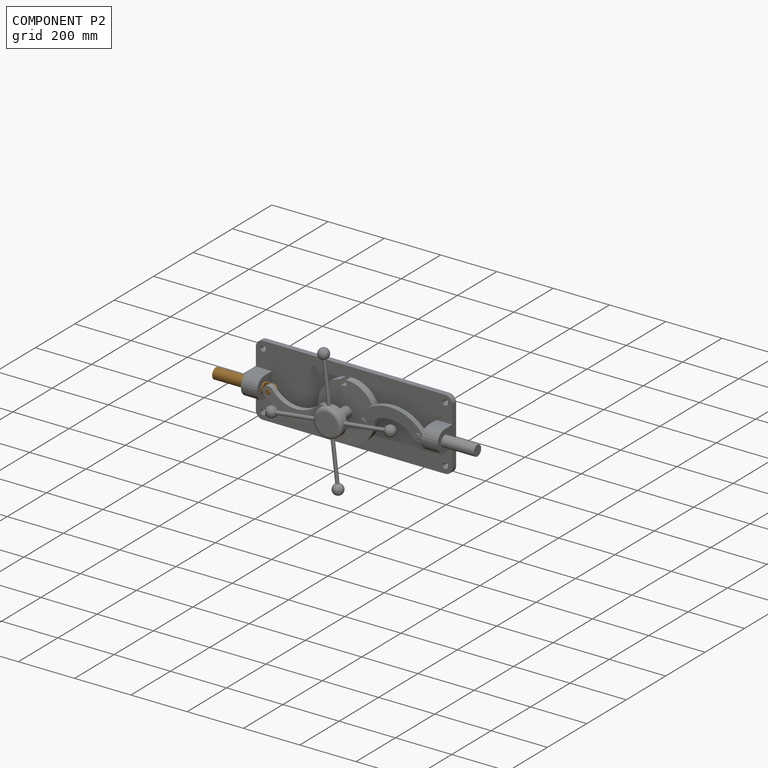
[diagram: component P2 — assembled]
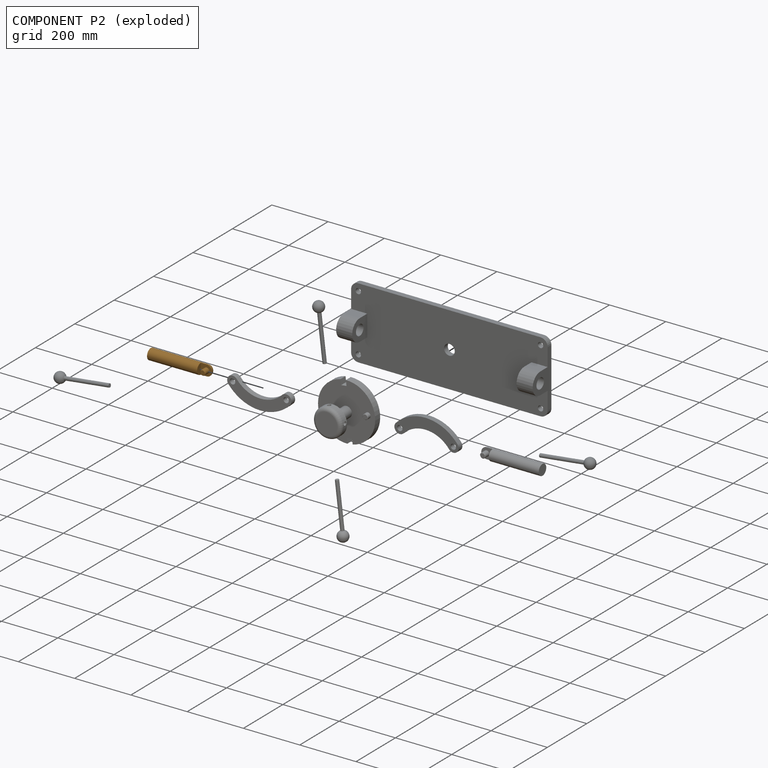
[diagram: component P2 — exploded]
COMPONENT P2 — geometry summary (no construction recipe available for this part):
  bounding box: 217.7 x 39.9 x 38.1 mm
  B-rep topology: 1 solid, 8 faces, 33 edges
  volume: 227691 mm^3 (69% of its bounding box)
  symmetry: mirror-symmetric across its y mid-plane
Held by: CYLINDRICAL mate "Cylindrical 2" to P9; REVOLUTE mate "Revolute 2" to P0.
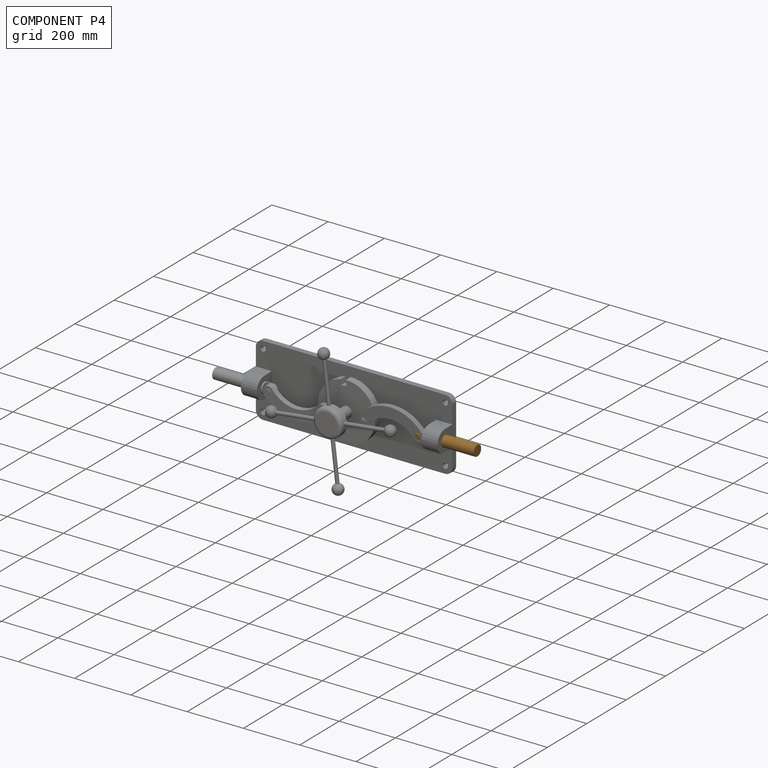
[diagram: component P4 — assembled]
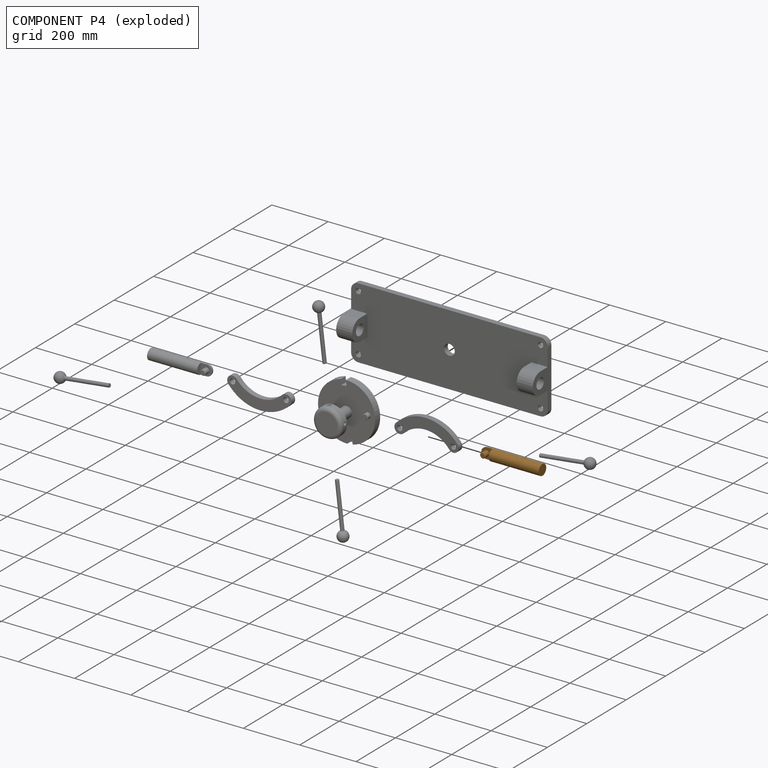
[diagram: component P4 — exploded]
COMPONENT P4 — geometry summary (no construction recipe available for this part):
  bounding box: 217.7 x 39.9 x 38.1 mm
  B-rep topology: 1 solid, 8 faces, 33 edges
  volume: 227691 mm^3 (69% of its bounding box)
  symmetry: mirror-symmetric across its y mid-plane
Held by: REVOLUTE mate "Revolute 1" to P7; CYLINDRICAL mate "Cylindrical 1" to P9.
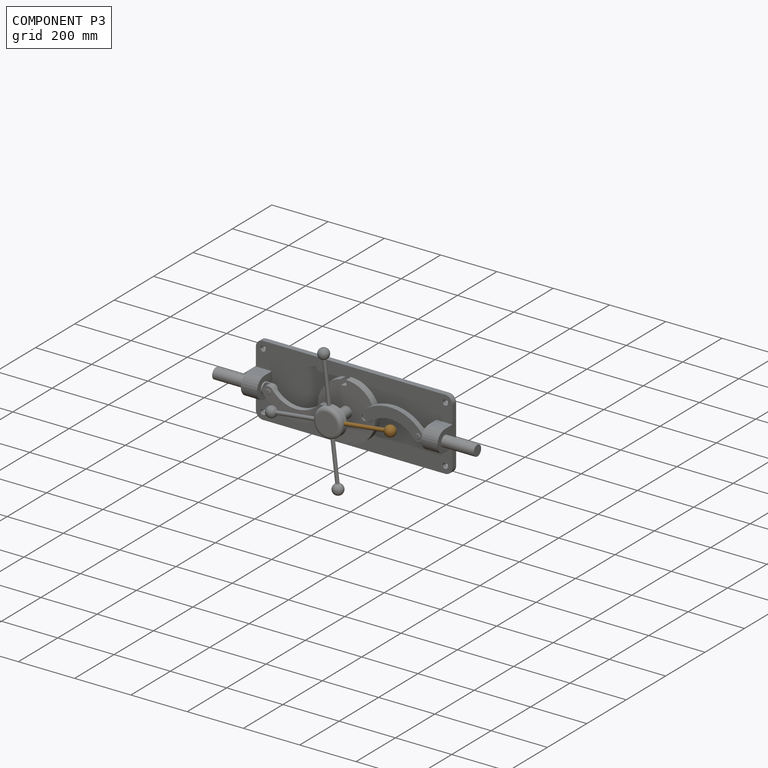
[diagram: component P3 — assembled]
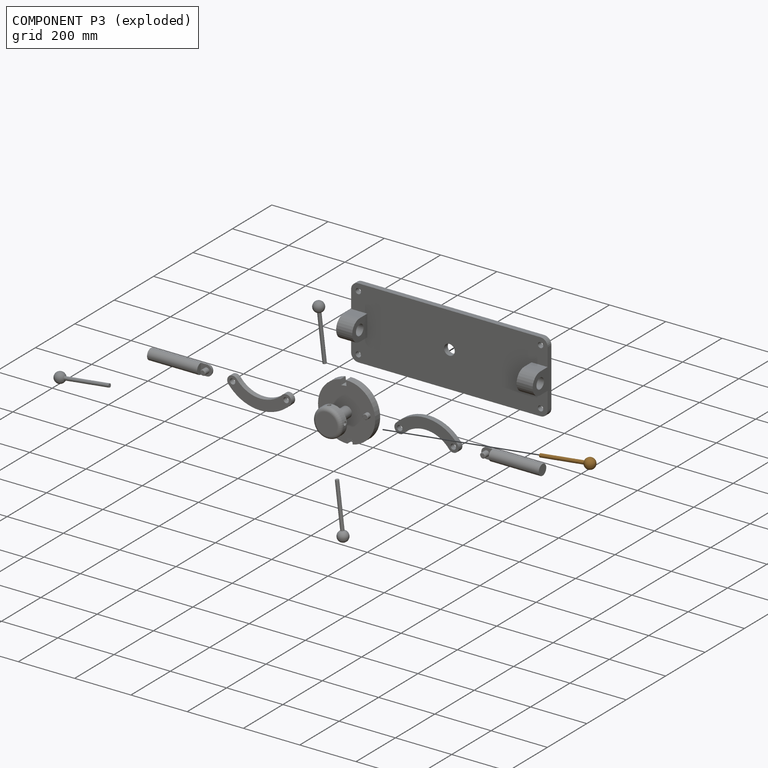
[diagram: component P3 — exploded]
COMPONENT P3 — geometry summary (no construction recipe available for this part):
  bounding box: 196.9 x 38.1 x 38.1 mm
  B-rep topology: 1 solid, 3 faces, 9 edges
  volume: 49137 mm^3 (17% of its bounding box)
  symmetry: revolution-symmetric about the x axis through its bounding-box center; mirror-symmetric across its y mid-plane, z mid-plane
Held by: FASTENED mate "Fastened 4" to P6.
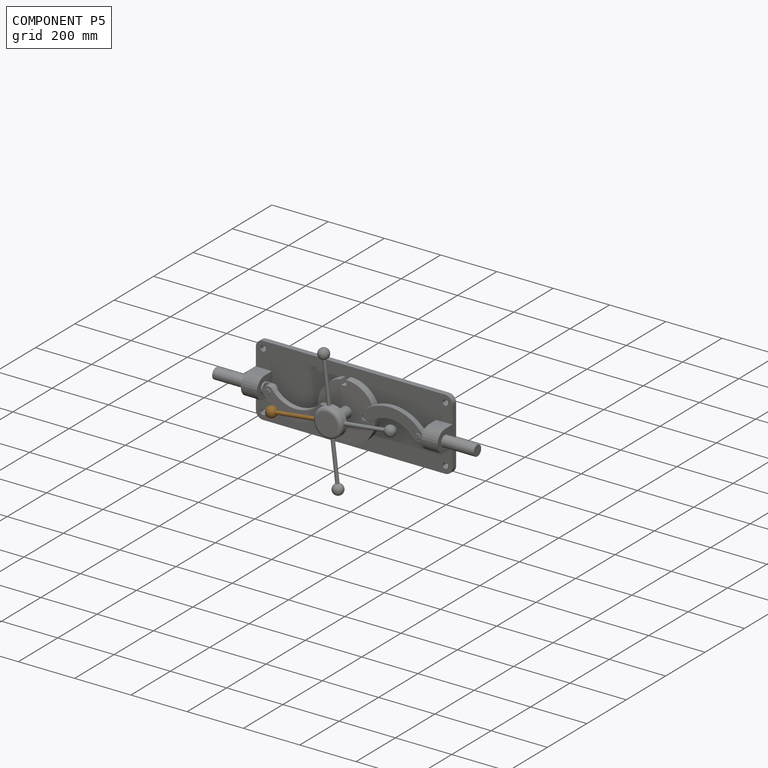
[diagram: component P5 — assembled]
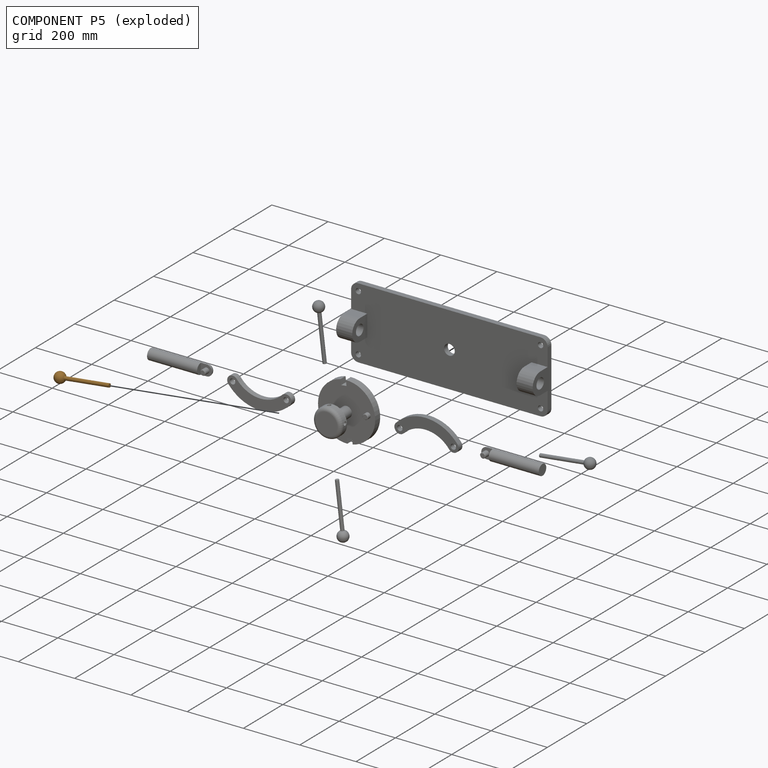
[diagram: component P5 — exploded]
COMPONENT P5 — geometry summary (no construction recipe available for this part):
  bounding box: 196.9 x 38.1 x 38.1 mm
  B-rep topology: 1 solid, 3 faces, 9 edges
  volume: 49137 mm^3 (17% of its bounding box)
  symmetry: revolution-symmetric about the x axis through its bounding-box center; mirror-symmetric across its y mid-plane, z mid-plane
Held by: FASTENED mate "Fastened 1" to P6.
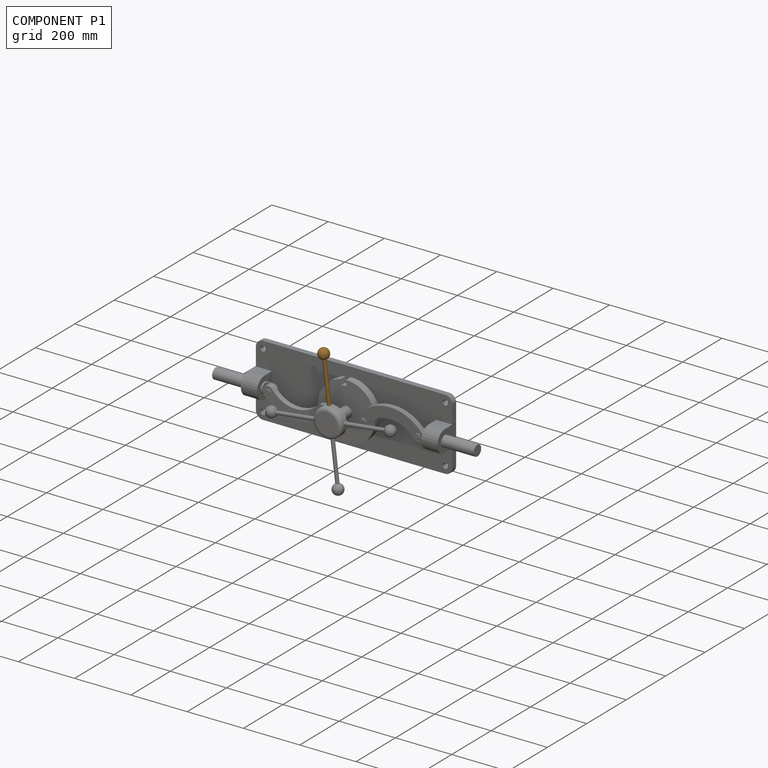
[diagram: component P1 — assembled]
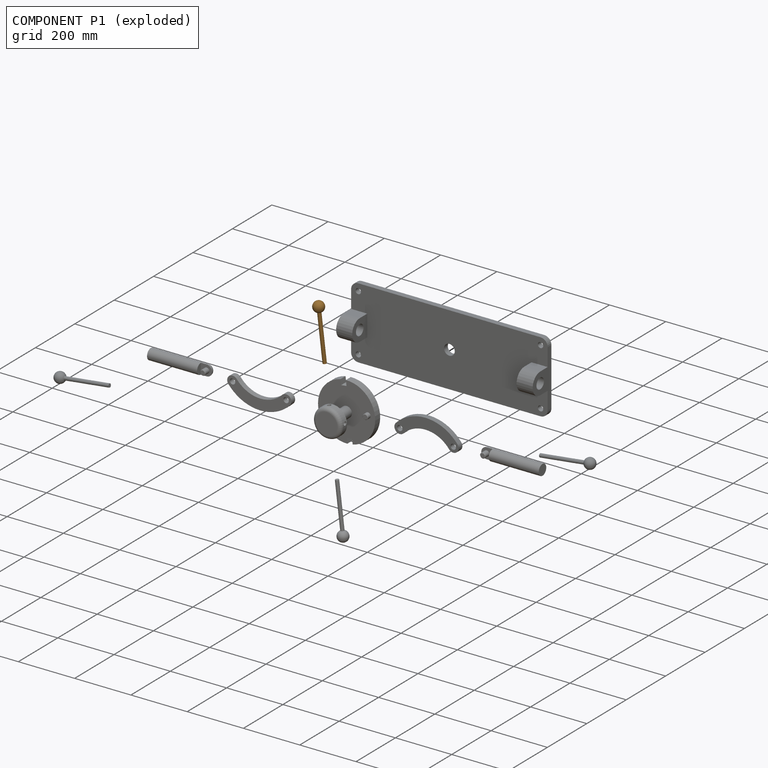
[diagram: component P1 — exploded]
COMPONENT P1 — geometry summary (no construction recipe available for this part):
  bounding box: 196.9 x 38.1 x 38.1 mm
  B-rep topology: 1 solid, 3 faces, 9 edges
  volume: 49137 mm^3 (17% of its bounding box)
  symmetry: revolution-symmetric about the x axis through its bounding-box center; mirror-symmetric across its y mid-plane, z mid-plane
Held by: FASTENED mate "Fastened 5" to P6.
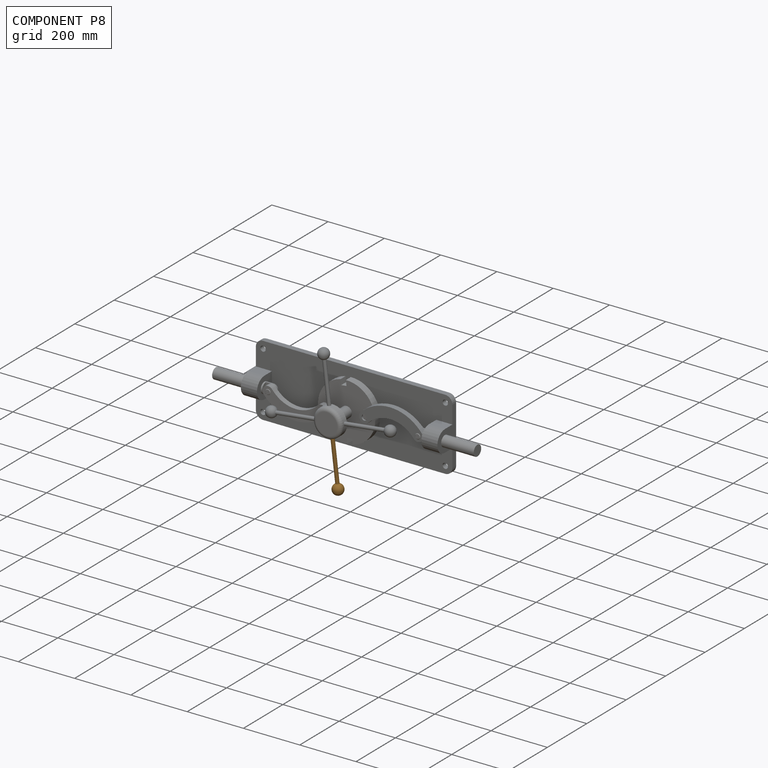
[diagram: component P8 — assembled]
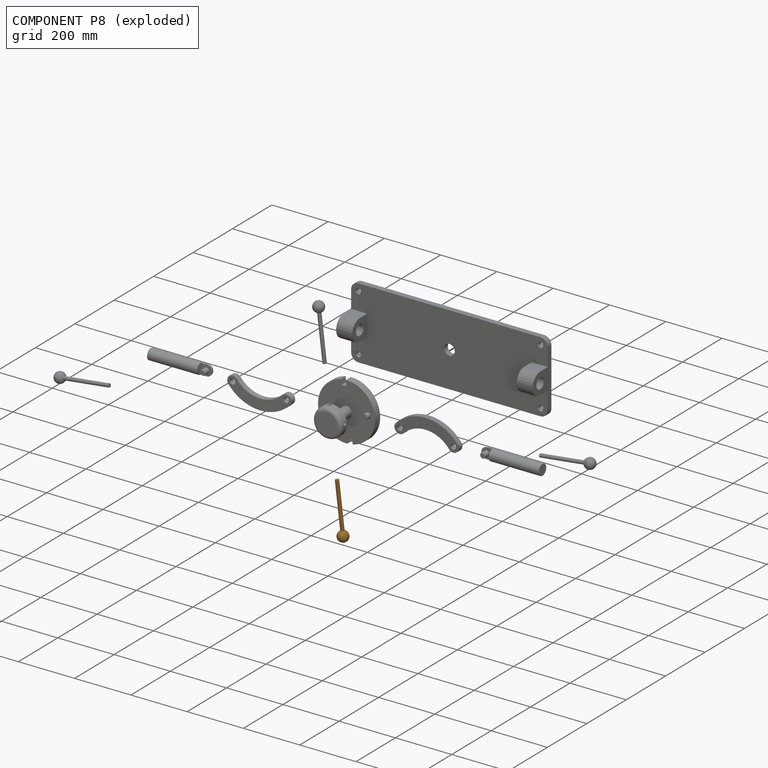
[diagram: component P8 — exploded]
COMPONENT P8 — geometry summary (no construction recipe available for this part):
  bounding box: 196.9 x 38.1 x 38.1 mm
  B-rep topology: 1 solid, 3 faces, 9 edges
  volume: 49137 mm^3 (17% of its bounding box)
  symmetry: revolution-symmetric about the x axis through its bounding-box center; mirror-symmetric across its y mid-plane, z mid-plane
Held by: FASTENED mate "Fastened 3" to P6.
PROVENANCE & LICENSES
Assembly (occurrences, transforms, mates, per-part STEP geometry): AutoMate dataset, Zenodo record 7776208, CC0.
Construction recipes: CADFS (HuggingFace VladPyatov/CADFS, CC-BY-4.0, layered over the ABC dataset), FeatureScript reconstruction programs keyed by ABC model id.
Join: ABC meta listings map ABC model id -> Onshape documentId; within a shared document, parts are matched by geometric signature (bounding-box dims + volume at 0.1% relative tolerance, exact B-rep face/solid counts).
Verification: 2 of this assembly's 10 components carry a recipe attachment, and every attachment is mesh-verified: the CADFS STEP and the AutoMate member STEP were compared as meshes in their shared local frame (symmetric sampled-point-to-mesh distance); worst across the 2 attachments: below the mesh-comparison resolution (tessellation chordal tolerance ~1.12 mm) on a 749 mm part.
Renders: orthographic iso camera (az 35 / el 25); the floor grid conveys scale (grid pitch printed in each image; no ruler). In the exploded view each component is displaced by its stored offset vector: the offsets alone carry the explosion direction (mate normal/axis signs are not orientation cues and do not encode it), and separation distances are assigned per mate-chain, not proportionally to assembly-order depth.
